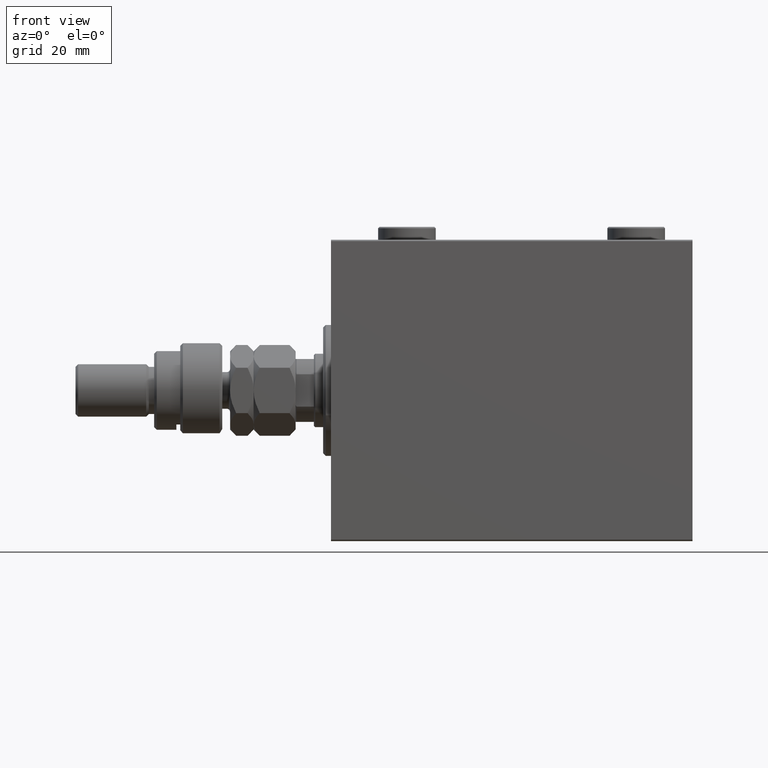
[diagram: clean part render]
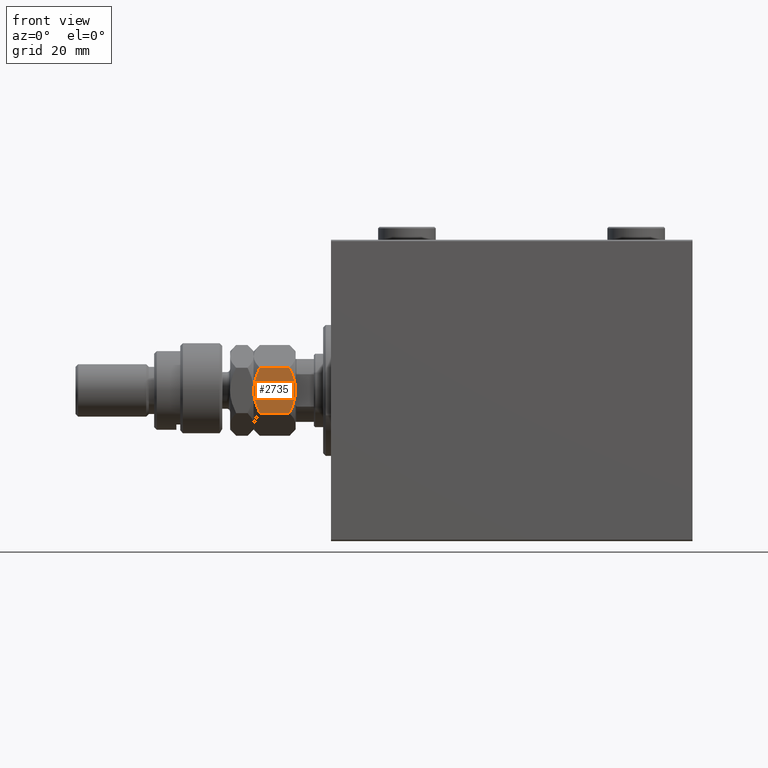
[diagram: same view with one face highlighted and labeled with its STEP entity id]
A machine part, front view. The second image highlights one B-rep face of the part: STEP entity #2735.
In plain terms, the highlighted planar face has unit normal (0, 1, -0).
Its self-contained STEP definition (entity closure, byte-faithful):
#1408 = VECTOR ( 'NONE', #13143, 1000.000000000000000 ) ;
#1437 = ORIENTED_EDGE ( 'NONE', *, *, #6883, .T. ) ;
#1836 = ORIENTED_EDGE ( 'NONE', *, *, #39372, .F. ) ;
#1848 = EDGE_CURVE ( 'NONE', #6249, #30310, #18339, .T. ) ;
#2129 = ORIENTED_EDGE ( 'NONE', *, *, #1848, .F. ) ;
#2143 = B_SPLINE_CURVE_WITH_KNOTS ( 'NONE', 3,
 ( #45426, #24472, #2800, #28827, #24704, #24230, #13528, #17637 ),
 .UNSPECIFIED., .F., .F.,
 ( 4, 2, 2, 4 ),
 ( 2.544309033646407248E-07, 0.004488823491893905240, 0.006733108022389175384, 0.008977392552884447263 ),
 .UNSPECIFIED. ) ;
#2581 = PLANE ( 'NONE',  #32676 ) ;
#2735 = ADVANCED_FACE ( 'NONE', ( #20846 ), #2581, .F. ) ;
#2800 = CARTESIAN_POINT ( 'NONE',  ( 2.378834511187501111, -15.94708733029709791, 14.93551393225600066 ) ) ;
#2963 = ORIENTED_EDGE ( 'NONE', *, *, #22253, .F. ) ;
#5915 = B_SPLINE_CURVE_WITH_KNOTS ( 'NONE', 3,
 ( #43363, #43133, #16827, #23891, #31928, #13187 ),
 .UNSPECIFIED., .F., .F.,
 ( 4, 2, 4 ),
 ( 0.008977392552884455937, 0.01343452311421657053, 0.01789165367554868685 ),
 .UNSPECIFIED. ) ;
#6249 = VERTEX_POINT ( 'NONE', #25984 ) ;
#6490 = CARTESIAN_POINT ( 'NONE',  ( 8.823580389329300999, -12.22621156269320331, 0.05953537397470176629 ) ) ;
#6883 = EDGE_CURVE ( 'NONE', #12169, #20345, #33187, .T. ) ;
#7861 = CARTESIAN_POINT ( 'NONE',  ( -3.035766082959412415E-15, -17.32050807568877104, 16.00000000000000000 ) ) ;
#10117 = VECTOR ( 'NONE', #18090, 1000.000000000000000 ) ;
#12169 = VERTEX_POINT ( 'NONE', #12637 ) ;
#12637 = CARTESIAN_POINT ( 'NONE',  ( -3.416099238086855886E-15, -17.32050807568877104, 13.67949192431124317 ) ) ;
#13055 = DIRECTION ( 'NONE',  ( -0.8660254037844388186, -0.4999999999999996669, 0.000000000000000000 ) ) ;
#13143 = DIRECTION ( 'NONE',  ( -0.000000000000000000, -0.000000000000000000, -1.000000000000000000 ) ) ;
#13187 = CARTESIAN_POINT ( 'NONE',  ( -2.796947266322166691E-15, -17.32050807568877104, 2.320508075688761718 ) ) ;
#13528 = CARTESIAN_POINT ( 'NONE',  ( 6.843123817691747490, -13.36962869744650284, 16.00000000000000711 ) ) ;
#13544 = DIRECTION ( 'NONE',  ( -0.4999999999999996669, 0.8660254037844388186, 0.000000000000000000 ) ) ;
#13636 = B_SPLINE_CURVE_WITH_KNOTS ( 'NONE', 3,
 ( #39854, #32306, #28151, #28627, #24982, #6490, #47379, #21347 ),
 .UNSPECIFIED., .F., .F.,
 ( 4, 2, 2, 4 ),
 ( 2.544309033642853415E-07, 0.004488823491893907842, 0.006733108022389181456, 0.008977392552884455937 ),
 .UNSPECIFIED. ) ;
#14000 = CARTESIAN_POINT ( 'NONE',  ( 15.00000000000000000, -8.660254037844389075, 2.320508075688767047 ) ) ;
#15957 = VERTEX_POINT ( 'NONE', #47314 ) ;
#16827 = CARTESIAN_POINT ( 'NONE',  ( 4.913081180497406386, -14.48393933357810681, 0.2303299219392160313 ) ) ;
#17637 = CARTESIAN_POINT ( 'NONE',  ( 7.499999999999993783, -12.99038105676658006, 16.00000000000000000 ) ) ;
#18090 = DIRECTION ( 'NONE',  ( -0.000000000000000000, -0.000000000000000000, -1.000000000000000000 ) ) ;
#18169 = ORIENTED_EDGE ( 'NONE', *, *, #19955, .F. ) ;
#18339 = B_SPLINE_CURVE_WITH_KNOTS ( 'NONE', 3,
 ( #30152, #22137, #37728, #40879, #33335, #29669 ),
 .UNSPECIFIED., .F., .F.,
 ( 4, 2, 4 ),
 ( 0.008977392552884447263, 0.01343452311421656532, 0.01789165367554868338 ),
 .UNSPECIFIED. ) ;
#19955 = EDGE_CURVE ( 'NONE', #46679, #15957, #13636, .T. ) ;
#20345 = VERTEX_POINT ( 'NONE', #20571 ) ;
#20571 = CARTESIAN_POINT ( 'NONE',  ( -2.796947266322166691E-15, -17.32050807568877104, 2.320508075688761718 ) ) ;
#20846 = FACE_OUTER_BOUND ( 'NONE', #26596, .T. ) ;
#21347 = CARTESIAN_POINT ( 'NONE',  ( 7.499999999999994671, -12.99038105676658184, 0.000000000000000000 ) ) ;
#22137 = CARTESIAN_POINT ( 'NONE',  ( 8.804550678576907430, -12.23719837131869248, 16.00000000000000000 ) ) ;
#22253 = EDGE_CURVE ( 'NONE', #15957, #20345, #5915, .T. ) ;
#23891 = CARTESIAN_POINT ( 'NONE',  ( 2.383929548160349299, -15.94414570932928576, 1.060479031370876957 ) ) ;
#24230 = CARTESIAN_POINT ( 'NONE',  ( 6.176419610670694560, -13.75455055083996214, 15.94046462602530312 ) ) ;
#24472 = CARTESIAN_POINT ( 'NONE',  ( 1.176108425306638505, -16.64148155974179488, 14.35851844025821755 ) ) ;
#24704 = CARTESIAN_POINT ( 'NONE',  ( 4.881674457977372761, -14.50207201327941320, 15.71619733805371411 ) ) ;
#24982 = CARTESIAN_POINT ( 'NONE',  ( 10.11832554202262102, -11.47869010025374870, 0.2838026619462938327 ) ) ;
#25984 = CARTESIAN_POINT ( 'NONE',  ( 7.499999999999993783, -12.99038105676658006, 16.00000000000000000 ) ) ;
#26596 = EDGE_LOOP ( 'NONE', ( #18169, #1836, #2129, #30247, #1437, #2963 ) ) ;
#28151 = CARTESIAN_POINT ( 'NONE',  ( 12.62116548881249756, -10.03367478323606754, 1.064486067744006892 ) ) ;
#28627 = CARTESIAN_POINT ( 'NONE',  ( 10.75222765045651308, -11.11270654730956586, 0.4475714085130263475 ) ) ;
#28827 = CARTESIAN_POINT ( 'NONE',  ( 4.247772349543483372, -14.86805556622359425, 15.55242859148698109 ) ) ;
#29669 = CARTESIAN_POINT ( 'NONE',  ( 15.00000000000000000, -8.660254037844389075, 13.67949192431123961 ) ) ;
#30152 = CARTESIAN_POINT ( 'NONE',  ( 7.499999999999993783, -12.99038105676658006, 16.00000000000000000 ) ) ;
#30247 = ORIENTED_EDGE ( 'NONE', *, *, #46627, .F. ) ;
#30310 = VERTEX_POINT ( 'NONE', #34374 ) ;
#31796 = CARTESIAN_POINT ( 'NONE',  ( -3.035766082959412415E-15, -17.32050807568877104, 16.00000000000000000 ) ) ;
#31928 = CARTESIAN_POINT ( 'NONE',  ( 1.174746544192159625, -16.64226784216984711, 1.642267842169777836 ) ) ;
#32306 = CARTESIAN_POINT ( 'NONE',  ( 13.82389157469335750, -9.339280553791367012, 1.641481559741792884 ) ) ;
#32676 = AXIS2_PLACEMENT_3D ( 'NONE', #31796, #13544, #13055 ) ;
#33187 = LINE ( 'NONE', #7861, #10117 ) ;
#33335 = CARTESIAN_POINT ( 'NONE',  ( 13.82525345580783416, -9.338494271363316557, 14.35773215783021861 ) ) ;
#34374 = CARTESIAN_POINT ( 'NONE',  ( 15.00000000000000000, -8.660254037844389075, 13.67949192431123961 ) ) ;
#37728 = CARTESIAN_POINT ( 'NONE',  ( 10.08691881950258917, -11.49682277995505331, 15.76967007806078591 ) ) ;
#39372 = EDGE_CURVE ( 'NONE', #30310, #46679, #42854, .T. ) ;
#39854 = CARTESIAN_POINT ( 'NONE',  ( 15.00000000000000000, -8.660254037844389075, 2.320508075688767047 ) ) ;
#40879 = CARTESIAN_POINT ( 'NONE',  ( 12.61607045183964360, -10.03661640420387080, 14.93952096862912171 ) ) ;
#42854 = LINE ( 'NONE', #46493, #1408 ) ;
#43133 = CARTESIAN_POINT ( 'NONE',  ( 6.195449321423083688, -13.74356374221447119, -1.770863548392988866E-15 ) ) ;
#43363 = CARTESIAN_POINT ( 'NONE',  ( 7.499999999999994671, -12.99038105676658184, 0.000000000000000000 ) ) ;
#45426 = CARTESIAN_POINT ( 'NONE',  ( -3.416099238086855886E-15, -17.32050807568877104, 13.67949192431124317 ) ) ;
#46493 = CARTESIAN_POINT ( 'NONE',  ( 15.00000000000000000, -8.660254037844389075, 16.00000000000000000 ) ) ;
#46627 = EDGE_CURVE ( 'NONE', #12169, #6249, #2143, .T. ) ;
#46679 = VERTEX_POINT ( 'NONE', #14000 ) ;
#47314 = CARTESIAN_POINT ( 'NONE',  ( 7.499999999999994671, -12.99038105676658184, 0.000000000000000000 ) ) ;
#47379 = CARTESIAN_POINT ( 'NONE',  ( 8.156876182308243628, -12.61113341608666083, -1.722865014715246890E-15 ) ) ;